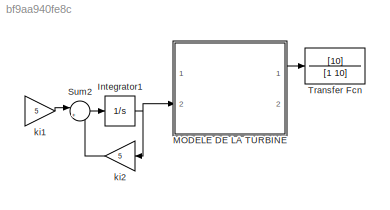
MODEL slx_bf9aa940fe8c
KIND model
CONFIG AbsTol = auto
CONFIG EnableMultiTasking = off
CONFIG FixedStep = auto
CONFIG MaxStep = auto
CONFIG MinStep = auto
CONFIG RelTol = 1e-3
CONFIG SampleTimeConstraint = Unconstrained
CONFIG SolverName = ode45
CONFIG StartTime = 0.0
CONFIG StopTime = 60
BLOCK [Integrator] Integrator1
  InitialCondition = 30
  Ports = [1, 1]
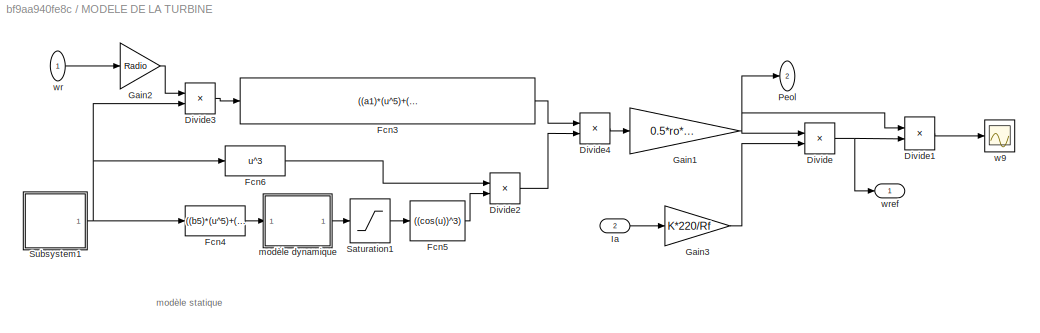
BLOCK [SubSystem] MODELE DE LA TURBINE
  Ports = [2, 2]
  RequestExecContextInheritance = off
BLOCK [Product] MODELE DE LA TURBINE/Divide
  Inputs = */
  Ports = [2, 1]
BLOCK [Product] MODELE DE LA TURBINE/Divide1
  Inputs = */
  Ports = [2, 1]
BLOCK [Product] MODELE DE LA TURBINE/Divide2
  Inputs = **
  Ports = [2, 1]
BLOCK [Product] MODELE DE LA TURBINE/Divide3
  Inputs = */
  Ports = [2, 1]
BLOCK [Product] MODELE DE LA TURBINE/Divide4
  Inputs = **
  Ports = [2, 1]
BLOCK [Fcn] MODELE DE LA TURBINE/Fcn3
  Expr = ((a1)*(u^5)+(a2)*(u^4)+(a3)*(u^3)+(a4)*(u^2)+(a5)*(u)+(a6))
BLOCK [Fcn] MODELE DE LA TURBINE/Fcn4
  Expr = ((b5)*(u^5)+(b4)*(u^4)+(b3)*(u^3)+(b2)*(u^2)+(b1)*(u)+(b0))
BLOCK [Fcn] MODELE DE LA TURBINE/Fcn5
  Expr = ((cos(u))^3)
BLOCK [Fcn] MODELE DE LA TURBINE/Fcn6
  Expr = u^3
BLOCK [Gain] MODELE DE LA TURBINE/Gain1
  Gain = 0.5*ro*pi*Radio^2
BLOCK [Gain] MODELE DE LA TURBINE/Gain2
  Gain = Radio
BLOCK [Gain] MODELE DE LA TURBINE/Gain3
  Gain = K*220/Rf
BLOCK [Inport] MODELE DE LA TURBINE/Ia
  NameLocation = top
  Port = 2
BLOCK [Outport] MODELE DE LA TURBINE/Peol
  Port = 2
  VectorParamsAs1DForOutWhenUnconnected = off
BLOCK [Saturate] MODELE DE LA TURBINE/Saturation1
  LowerLimit = 0
  UpperLimit = 0.095
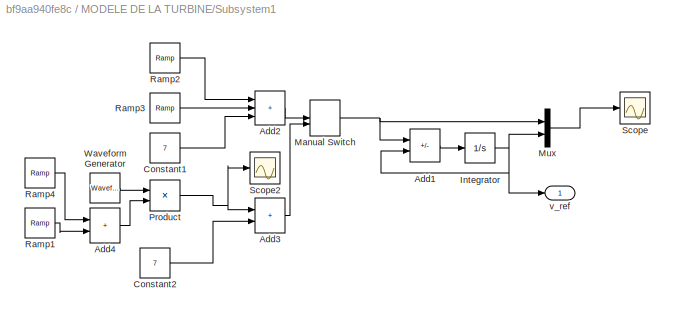
BLOCK [SubSystem] MODELE DE LA TURBINE/Subsystem1
  Ports = [0, 1]
  RequestExecContextInheritance = off
BLOCK [Sum] MODELE DE LA TURBINE/Subsystem1/Add1
  IconShape = rectangular
  Inputs = +-
  Ports = [2, 1]
BLOCK [Sum] MODELE DE LA TURBINE/Subsystem1/Add2
  IconShape = rectangular
  Inputs = +++
  Ports = [3, 1]
BLOCK [Sum] MODELE DE LA TURBINE/Subsystem1/Add3
  IconShape = rectangular
  Ports = [2, 1]
BLOCK [Sum] MODELE DE LA TURBINE/Subsystem1/Add4
  IconShape = rectangular
  Ports = [2, 1]
BLOCK [Constant] MODELE DE LA TURBINE/Subsystem1/Constant1
  Value = 7
BLOCK [Constant] MODELE DE LA TURBINE/Subsystem1/Constant2
  Value = 7
BLOCK [Integrator] MODELE DE LA TURBINE/Subsystem1/Integrator
  InitialCondition = 7
  LimitOutput = on
  LowerSaturationLimit = 0
  Ports = [1, 1]
  UpperSaturationLimit = 10000
BLOCK [ManualSwitch] MODELE DE LA TURBINE/Subsystem1/Manual Switch
BLOCK [Mux] MODELE DE LA TURBINE/Subsystem1/Mux
  DisplayOption = bar
  Inputs = 2
  Ports = [2, 1]
BLOCK [Product] MODELE DE LA TURBINE/Subsystem1/Product
  Ports = [2, 1]
BLOCK [Reference] MODELE DE LA TURBINE/Subsystem1/Ramp1  REF=simulink/Sources/Ramp
  Ports = [0, 1]
  SourceBlock = simulink/Sources/Ramp
  SourceProductBaseCode = SL
  SourceType = Ramp
BLOCK [Reference] MODELE DE LA TURBINE/Subsystem1/Ramp2  REF=simulink/Sources/Ramp
  Ports = [0, 1]
  SourceBlock = simulink/Sources/Ramp
  SourceProductBaseCode = SL
  SourceType = Ramp
BLOCK [Reference] MODELE DE LA TURBINE/Subsystem1/Ramp3  REF=simulink/Sources/Ramp
  Ports = [0, 1]
  SourceBlock = simulink/Sources/Ramp
  SourceProductBaseCode = SL
  SourceType = Ramp
BLOCK [Reference] MODELE DE LA TURBINE/Subsystem1/Ramp4  REF=simulink/Sources/Ramp
  Ports = [0, 1]
  SourceBlock = simulink/Sources/Ramp
  SourceProductBaseCode = SL
  SourceType = Ramp
BLOCK [Scope] MODELE DE LA TURBINE/Subsystem1/Scope
  Floating = off
  NumInputPorts = 1
  Ports = [1]
  ScopeSpecificationString = Simulink.scopes.TimeScopeBlockCfg('CurrentConfiguration', extmgr.ConfigurationSet(extmgr.Configuration('Core','General UI',true),extmgr.Configuration('Core','Source UI',true),extmgr.Configuration('Sources','WiredSimulink',true,'DataLoggingSaveFormat','StructureWithTime','DataLoggingDecimation','1','DataLoggingDecimateData',true),extmgr.Configuration('Visuals','Time Domain',true,'SerializedDisplays...<+1628ch>
BLOCK [Scope] MODELE DE LA TURBINE/Subsystem1/Scope2
  Floating = off
  NumInputPorts = 1
  Ports = [1]
  ScopeSpecificationString = Simulink.scopes.TimeScopeBlockCfg('CurrentConfiguration', extmgr.ConfigurationSet(extmgr.Configuration('Core','General UI',true),extmgr.Configuration('Core','Source UI',true),extmgr.Configuration('Sources','WiredSimulink',true,'DataLoggingSaveFormat','StructureWithTime','DataLoggingDecimation','1','DataLoggingDecimateData',true,'DataLoggingVariableName','ScopeData1'),extmgr.Configuration('Visuals'...<+1663ch>
BLOCK [Reference] MODELE DE LA TURBINE/Subsystem1/Waveform Generator  REF=simulink/Sources/Waveform
Generator
  Ports = [0, 1]
  SourceBlock = simulink/Sources/Waveform\nGenerator
  SourceProductBaseCode = SL
  SourceType = WaveformGenerator
BLOCK [Outport] MODELE DE LA TURBINE/Subsystem1/v_ref
  VectorParamsAs1DForOutWhenUnconnected = off
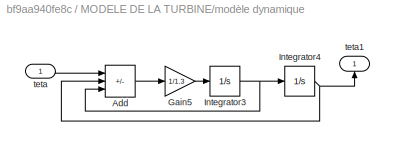
BLOCK [SubSystem] MODELE DE LA TURBINE/modèle dynamique
  Ports = [1, 1]
  RequestExecContextInheritance = off
BLOCK [Sum] MODELE DE LA TURBINE/modèle dynamique/Add
  IconShape = rectangular
  Inputs = +--
  Ports = [3, 1]
BLOCK [Gain] MODELE DE LA TURBINE/modèle dynamique/Gain5
  Gain = 1/1.3
BLOCK [Integrator] MODELE DE LA TURBINE/modèle dynamique/Integrator3
  Ports = [1, 1]
BLOCK [Integrator] MODELE DE LA TURBINE/modèle dynamique/Integrator4
  InitialCondition = 0.0955
  Ports = [1, 1]
BLOCK [Inport] MODELE DE LA TURBINE/modèle dynamique/teta
BLOCK [Outport] MODELE DE LA TURBINE/modèle dynamique/teta1
  NameLocation = right
  VectorParamsAs1DForOutWhenUnconnected = off
BLOCK [Scope] MODELE DE LA TURBINE/w9
  Floating = off
  NumInputPorts = 1
  Ports = [1]
  ScopeSpecificationString = Simulink.scopes.TimeScopeBlockCfg('CurrentConfiguration', extmgr.ConfigurationSet(extmgr.Configuration('Core','General UI',true),extmgr.Configuration('Core','Source UI',true),extmgr.Configuration('Sources','WiredSimulink',true,'DataLoggingVariableName','ScopeData8','DataLoggingSaveFormat','StructureWithTime','DataLoggingDecimation','1','DataLoggingDecimateData',true),extmgr.Configuration('Visuals'...<+1593ch>
BLOCK [Inport] MODELE DE LA TURBINE/wr
  NameLocation = top
BLOCK [Outport] MODELE DE LA TURBINE/wref
  NameLocation = top
  VectorParamsAs1DForOutWhenUnconnected = off
BLOCK [Sum] Sum2
  Inputs = |+-
  Ports = [2, 1]
BLOCK [TransferFcn] Transfer Fcn
  Denominator = [1 10]
  Numerator = [10]
BLOCK [Gain] ki1
  Gain = 5
BLOCK [Gain] ki2
  Gain = 5
  NameLocation = top
ANNOTATION MODELE DE LA TURBINE: modèle statique
NET Integrator1:1 -> MODELE DE LA TURBINE:2, ki2:1
LINE MODELE DE LA TURBINE/Divide1:1 -> MODELE DE LA TURBINE/w9:1
LINE MODELE DE LA TURBINE/Divide2:1 -> MODELE DE LA TURBINE/Divide4:2
LINE MODELE DE LA TURBINE/Divide3:1 -> MODELE DE LA TURBINE/Fcn3:1
LINE MODELE DE LA TURBINE/Divide4:1 -> MODELE DE LA TURBINE/Gain1:1
NET MODELE DE LA TURBINE/Divide:1 -> MODELE DE LA TURBINE/Divide1:2, MODELE DE LA TURBINE/wref:1
LINE MODELE DE LA TURBINE/Fcn3:1 -> MODELE DE LA TURBINE/Divide4:1
LINE MODELE DE LA TURBINE/Fcn4:1 -> MODELE DE LA TURBINE/modèle dynamique:1
LINE MODELE DE LA TURBINE/Fcn5:1 -> MODELE DE LA TURBINE/Divide2:2
LINE MODELE DE LA TURBINE/Fcn6:1 -> MODELE DE LA TURBINE/Divide2:1
NET MODELE DE LA TURBINE/Gain1:1 -> MODELE DE LA TURBINE/Divide1:1, MODELE DE LA TURBINE/Divide:1, MODELE DE LA TURBINE/Peol:1
LINE MODELE DE LA TURBINE/Gain2:1 -> MODELE DE LA TURBINE/Divide3:1
LINE MODELE DE LA TURBINE/Gain3:1 -> MODELE DE LA TURBINE/Divide:2
LINE MODELE DE LA TURBINE/Ia:1 -> MODELE DE LA TURBINE/Gain3:1
LINE MODELE DE LA TURBINE/Saturation1:1 -> MODELE DE LA TURBINE/Fcn5:1
LINE MODELE DE LA TURBINE/Subsystem1/Add1:1 -> MODELE DE LA TURBINE/Subsystem1/Integrator:1
LINE MODELE DE LA TURBINE/Subsystem1/Add2:1 -> MODELE DE LA TURBINE/Subsystem1/Manual Switch:1
LINE MODELE DE LA TURBINE/Subsystem1/Add3:1 -> MODELE DE LA TURBINE/Subsystem1/Manual Switch:2
LINE MODELE DE LA TURBINE/Subsystem1/Add4:1 -> MODELE DE LA TURBINE/Subsystem1/Product:2
LINE MODELE DE LA TURBINE/Subsystem1/Constant1:1 -> MODELE DE LA TURBINE/Subsystem1/Add2:3
LINE MODELE DE LA TURBINE/Subsystem1/Constant2:1 -> MODELE DE LA TURBINE/Subsystem1/Add3:2
NET MODELE DE LA TURBINE/Subsystem1/Integrator:1 -> MODELE DE LA TURBINE/Subsystem1/Add1:2, MODELE DE LA TURBINE/Subsystem1/Mux:2, MODELE DE LA TURBINE/Subsystem1/v_ref:1
NET MODELE DE LA TURBINE/Subsystem1/Manual Switch:1 -> MODELE DE LA TURBINE/Subsystem1/Add1:1, MODELE DE LA TURBINE/Subsystem1/Mux:1
LINE MODELE DE LA TURBINE/Subsystem1/Mux:1 -> MODELE DE LA TURBINE/Subsystem1/Scope:1
NET MODELE DE LA TURBINE/Subsystem1/Product:1 -> MODELE DE LA TURBINE/Subsystem1/Add3:1, MODELE DE LA TURBINE/Subsystem1/Scope2:1
LINE MODELE DE LA TURBINE/Subsystem1/Ramp1:1 -> MODELE DE LA TURBINE/Subsystem1/Add4:2
LINE MODELE DE LA TURBINE/Subsystem1/Ramp2:1 -> MODELE DE LA TURBINE/Subsystem1/Add2:1
LINE MODELE DE LA TURBINE/Subsystem1/Ramp3:1 -> MODELE DE LA TURBINE/Subsystem1/Add2:2
LINE MODELE DE LA TURBINE/Subsystem1/Ramp4:1 -> MODELE DE LA TURBINE/Subsystem1/Add4:1
LINE MODELE DE LA TURBINE/Subsystem1/Waveform Generator:1 -> MODELE DE LA TURBINE/Subsystem1/Product:1
NET MODELE DE LA TURBINE/Subsystem1:1 -> MODELE DE LA TURBINE/Divide3:2, MODELE DE LA TURBINE/Fcn4:1, MODELE DE LA TURBINE/Fcn6:1
LINE MODELE DE LA TURBINE/modèle dynamique/Add:1 -> MODELE DE LA TURBINE/modèle dynamique/Gain5:1
LINE MODELE DE LA TURBINE/modèle dynamique/Gain5:1 -> MODELE DE LA TURBINE/modèle dynamique/Integrator3:1
NET MODELE DE LA TURBINE/modèle dynamique/Integrator3:1 -> MODELE DE LA TURBINE/modèle dynamique/Add:3, MODELE DE LA TURBINE/modèle dynamique/Integrator4:1
NET MODELE DE LA TURBINE/modèle dynamique/Integrator4:1 -> MODELE DE LA TURBINE/modèle dynamique/Add:2, MODELE DE LA TURBINE/modèle dynamique/teta1:1
LINE MODELE DE LA TURBINE/modèle dynamique/teta:1 -> MODELE DE LA TURBINE/modèle dynamique/Add:1
LINE MODELE DE LA TURBINE/modèle dynamique:1 -> MODELE DE LA TURBINE/Saturation1:1
LINE MODELE DE LA TURBINE/wr:1 -> MODELE DE LA TURBINE/Gain2:1
LINE MODELE DE LA TURBINE:1 -> Transfer Fcn:1
LINE Sum2:1 -> Integrator1:1
LINE ki1:1 -> Sum2:1
LINE ki2:1 -> Sum2:2
note: NET lines group one-source signal fan-out (src -> all destinations, sorted); 1:1 wires keep LINE
